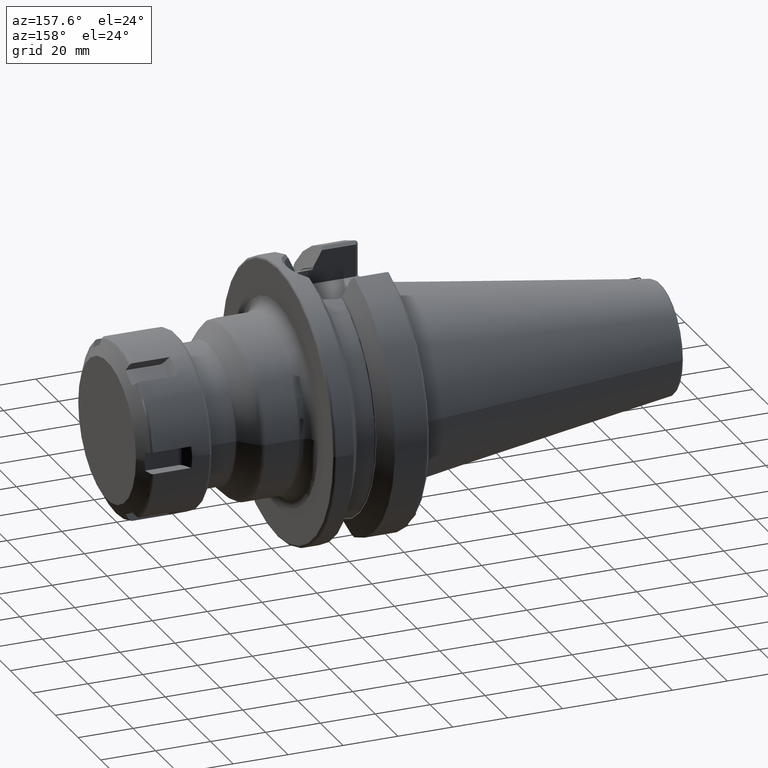
[diagram: clean part render]
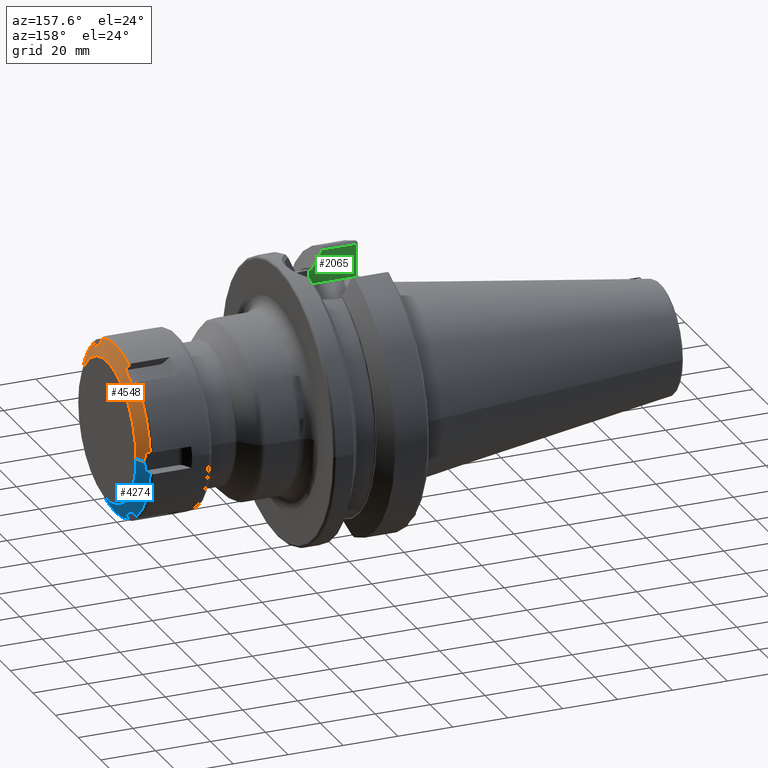
[diagram: same view with three faces highlighted in distinct colors, each labeled with its STEP entity id]
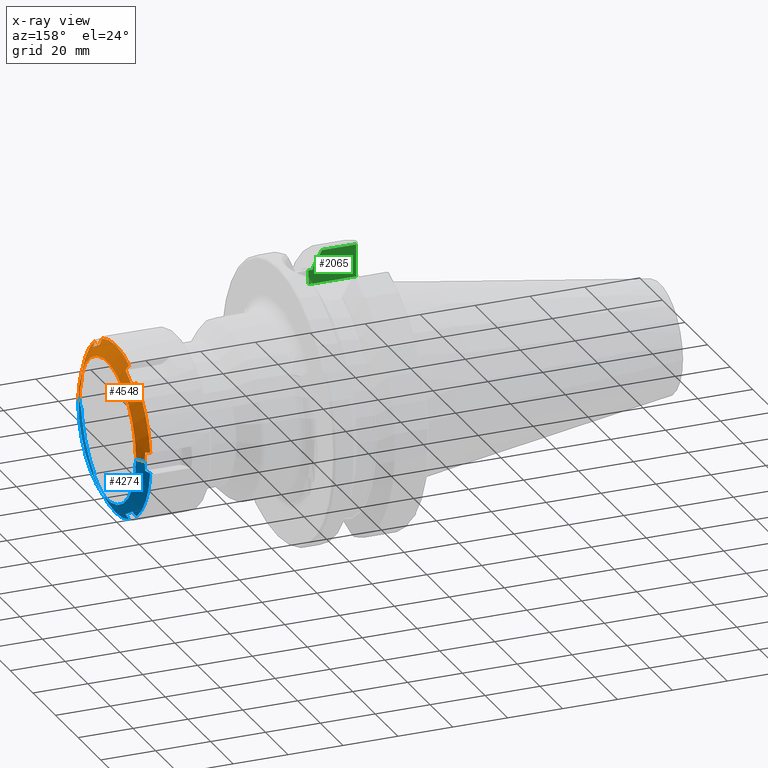
[diagram: x-ray of the same camera — body ghosted, the three highlighted faces saturated]
A machine part, auxiliary view with three faces highlighted in distinct colors.
The next image is the same camera in x-ray (body ghosted, the three faces saturated) — at least one of them is partly hidden behind the body in this view.
Their STEP definitions:

[orange] entity #4548 — the highlighted conical surface has half-angle 60 deg.
#3465=DIRECTION('',(-5.E-1,-8.660254037844E-1,0.E0));
#3466=VECTOR('',#3465,3.752776749692E0);
#3467=CARTESIAN_POINT('',(2.55E1,-2.55E1,0.E0));
#3468=LINE('',#3467,#3466);
#3474=DIRECTION('',(-5.E-1,8.660254037844E-1,0.E0));
#3475=VECTOR('',#3474,3.752776749692E0);
#3476=CARTESIAN_POINT('',(2.55E1,2.55E1,0.E0));
#3477=LINE('',#3476,#3475);
#3750=CARTESIAN_POINT('',(2.351130782476E1,-2.874999999997E1,3.35E0));
#3751=CARTESIAN_POINT('',(2.353617695757E1,-2.874999999997E1,2.977828809184E0));
#3752=CARTESIAN_POINT('',(2.357773662637E1,-2.874999999997E1,2.233458033279E0));
#3753=CARTESIAN_POINT('',(2.361525848375E1,-2.874999999997E1,1.116817767542E0));
#3754=CARTESIAN_POINT('',(2.362361162515E1,-2.874999999997E1,
3.722872262064E-1));
#3755=CARTESIAN_POINT('',(2.362361162515E1,-2.874999999997E1,0.E0));
#3757=CARTESIAN_POINT('',(2.239674230313E1,-3.063769284335E1,3.820654686622E0));
#3758=CARTESIAN_POINT('',(2.258533438069E1,-3.031843804101E1,3.741055524357E0));
#3759=CARTESIAN_POINT('',(2.295968976826E1,-2.968456909419E1,3.583014245782E0));
#3760=CARTESIAN_POINT('',(2.332838053240E1,-2.905997751876E1,3.427286075687E0));
#3761=CARTESIAN_POINT('',(2.351130782476E1,-2.874999999997E1,3.35E0));
#3763=CARTESIAN_POINT('',(2.239674230313E1,0.E0,0.E0));
#3764=DIRECTION('',(-1.E0,0.E0,0.E0));
#3765=DIRECTION('',(0.E0,-9.923139382473E-1,1.237459007814E-1));
#3766=AXIS2_PLACEMENT_3D('',#3763,#3764,#3765);
#3768=CARTESIAN_POINT('',(2.351130782476E1,-1.727618510266E1,2.322323035877E1));
#3769=CARTESIAN_POINT('',(2.332842823305E1,-1.749804769833E1,2.345297580209E1));
#3770=CARTESIAN_POINT('',(2.295978520802E1,-1.794515018410E1,2.391596397947E1));
#3771=CARTESIAN_POINT('',(2.258538211756E1,-1.839901028735E1,2.438594987460E1));
#3772=CARTESIAN_POINT('',(2.239674230313E1,-1.862763043938E1,2.462269297237E1));
#3774=CARTESIAN_POINT('',(2.351130782476E1,-1.147381489730E1,2.657323035877E1));
#3775=CARTESIAN_POINT('',(2.356105051412E1,-1.211849164162E1,2.620102606690E1));
#3776=CARTESIAN_POINT('',(2.362777625606E1,-1.340784245763E1,2.545661902620E1));
#3777=CARTESIAN_POINT('',(2.362777583851E1,-1.534217003691E1,2.433983447760E1));
#3778=CARTESIAN_POINT('',(2.356105010187E1,-1.663151370114E1,2.359543156598E1));
#3779=CARTESIAN_POINT('',(2.351130782476E1,-1.727618510266E1,2.322323035877E1));
#3781=CARTESIAN_POINT('',(2.239674230313E1,-1.201006240397E1,2.844334765900E1));
#3782=CARTESIAN_POINT('',(2.258533438069E1,-1.191936989944E1,2.812706530876E1));
#3783=CARTESIAN_POINT('',(2.295968976826E1,-1.173930318813E1,2.749909805885E1));
#3784=CARTESIAN_POINT('',(2.332838053240E1,-1.156187195180E1,2.688032180249E1));
#3785=CARTESIAN_POINT('',(2.351130782476E1,-1.147381489730E1,2.657323035877E1));
#3787=CARTESIAN_POINT('',(2.239674230313E1,0.E0,0.E0));
#3788=DIRECTION('',(-1.E0,0.E0,0.E0));
#3789=DIRECTION('',(0.E0,-3.889898754327E-1,9.212420294422E-1));
#3790=AXIS2_PLACEMENT_3D('',#3787,#3788,#3789);
#3792=CARTESIAN_POINT('',(2.351130782476E1,1.147381489730E1,2.657323035877E1));
#3793=CARTESIAN_POINT('',(2.332842823305E1,1.156184898978E1,2.688024172443E1));
#3794=CARTESIAN_POINT('',(2.295978520802E1,1.173925727016E1,2.749893792389E1));
#3795=CARTESIAN_POINT('',(2.258538211756E1,1.191934694315E1,2.812698525064E1));
#3796=CARTESIAN_POINT('',(2.239674230313E1,1.201006240397E1,2.844334765900E1));
#3798=CARTESIAN_POINT('',(2.351130782476E1,1.727618510266E1,2.322323035877E1));
#3799=CARTESIAN_POINT('',(2.356105051412E1,1.663150835835E1,2.359543465064E1));
#3800=CARTESIAN_POINT('',(2.362777625606E1,1.534215754233E1,2.433984169135E1));
#3801=CARTESIAN_POINT('',(2.362777583851E1,1.340782996305E1,2.545662623995E1));
#3802=CARTESIAN_POINT('',(2.356105010187E1,1.211848629883E1,2.620102915156E1));
#3803=CARTESIAN_POINT('',(2.351130782476E1,1.147381489730E1,2.657323035877E1));
#3805=CARTESIAN_POINT('',(2.239674230313E1,1.862763043938E1,2.462269297237E1));
#3806=CARTESIAN_POINT('',(2.258533438069E1,1.839906814157E1,2.438600978440E1));
#3807=CARTESIAN_POINT('',(2.295968976826E1,1.794526590606E1,2.391608381307E1));
#3808=CARTESIAN_POINT('',(2.332838053240E1,1.749810556696E1,2.345303572681E1));
#3809=CARTESIAN_POINT('',(2.351130782476E1,1.727618510266E1,2.322323035877E1));
#3811=CARTESIAN_POINT('',(2.239674230313E1,0.E0,0.E0));
#3812=DIRECTION('',(-1.E0,0.E0,0.E0));
#3813=DIRECTION('',(0.E0,6.033240628145E-1,7.974961286608E-1));
#3814=AXIS2_PLACEMENT_3D('',#3811,#3812,#3813);
#3816=CARTESIAN_POINT('',(2.351130782476E1,2.874999999997E1,3.35E0));
#3817=CARTESIAN_POINT('',(2.332842823305E1,2.905989668812E1,3.427265922344E0));
#3818=CARTESIAN_POINT('',(2.295978520802E1,2.968440745426E1,3.582973944421E0));
#3819=CARTESIAN_POINT('',(2.258538211756E1,3.031835723049E1,3.741035376033E0));
#3820=CARTESIAN_POINT('',(2.239674230313E1,3.063769284335E1,3.820654686622E0));
#3822=CARTESIAN_POINT('',(2.362361162515E1,2.874999999997E1,0.E0));
#3823=CARTESIAN_POINT('',(2.362361162515E1,2.874999999997E1,3.723033754199E-1));
#3824=CARTESIAN_POINT('',(2.361525781864E1,2.874999999997E1,1.116855572672E0));
#3825=CARTESIAN_POINT('',(2.357773435590E1,2.874999999997E1,2.233506677949E0));
#3826=CARTESIAN_POINT('',(2.353617556265E1,2.874999999997E1,2.977849684408E0));
#3827=CARTESIAN_POINT('',(2.351130782476E1,2.874999999997E1,3.35E0));
#3829=CARTESIAN_POINT('',(2.55E1,0.E0,0.E0));
#3830=DIRECTION('',(1.E0,0.E0,0.E0));
#3831=DIRECTION('',(0.E0,1.E0,0.E0));
#3832=AXIS2_PLACEMENT_3D('',#3829,#3830,#3831);
#4112=CARTESIAN_POINT('',(2.55E1,2.55E1,0.E0));
#4113=CARTESIAN_POINT('',(2.55E1,-2.55E1,0.E0));
#4114=VERTEX_POINT('',#4112);
#4115=VERTEX_POINT('',#4113);
#4124=VERTEX_POINT('',#3816);
#4125=VERTEX_POINT('',#3820);
#4126=VERTEX_POINT('',#3822);
#4150=VERTEX_POINT('',#3792);
#4151=VERTEX_POINT('',#3796);
#4152=VERTEX_POINT('',#3798);
#4153=VERTEX_POINT('',#3805);
#4165=VERTEX_POINT('',#3768);
#4166=VERTEX_POINT('',#3772);
#4167=VERTEX_POINT('',#3774);
#4168=VERTEX_POINT('',#3781);
#4180=VERTEX_POINT('',#3750);
#4181=VERTEX_POINT('',#3755);
#4182=VERTEX_POINT('',#3757);
#4517=CARTESIAN_POINT('',(2.394837115156E1,0.E0,0.E0));
#4518=DIRECTION('',(-1.E0,0.E0,0.E0));
#4519=DIRECTION('',(0.E0,1.E0,0.E0));
#4520=AXIS2_PLACEMENT_3D('',#4517,#4518,#4519);
#4521=CONICAL_SURFACE('',#4520,2.818749999998E1,6.E1);
#4523=ORIENTED_EDGE('',*,*,#4522,.F.);
#4525=ORIENTED_EDGE('',*,*,#4524,.F.);
#4526=ORIENTED_EDGE('',*,*,#4424,.T.);
#4528=ORIENTED_EDGE('',*,*,#4527,.F.);
#4530=ORIENTED_EDGE('',*,*,#4529,.F.);
#4532=ORIENTED_EDGE('',*,*,#4531,.F.);
#4533=ORIENTED_EDGE('',*,*,#4408,.T.);
#4535=ORIENTED_EDGE('',*,*,#4534,.F.);
#4536=ORIENTED_EDGE('',*,*,#4510,.F.);
#4537=ORIENTED_EDGE('',*,*,#4481,.F.);
#4538=ORIENTED_EDGE('',*,*,#4392,.T.);
#4540=ORIENTED_EDGE('',*,*,#4539,.F.);
#4542=ORIENTED_EDGE('',*,*,#4541,.F.);
#4543=ORIENTED_EDGE('',*,*,#4264,.F.);
#4544=ORIENTED_EDGE('',*,*,#4231,.T.);
#4545=ORIENTED_EDGE('',*,*,#4261,.T.);
#4546=EDGE_LOOP('',(#4523,#4525,#4526,#4528,#4530,#4532,#4533,#4535,#4536,#4537,
#4538,#4540,#4542,#4543,#4544,#4545));
#4547=FACE_OUTER_BOUND('',#4546,.F.);
#4548=ADVANCED_FACE('',(#4547),#4521,.T.);
#3756=B_SPLINE_CURVE_WITH_KNOTS('',3,(#3750,#3751,#3752,#3753,#3754,#3755),
.UNSPECIFIED.,.F.,.F.,(4,1,1,4),(0.E0,3.333333333333E-1,6.666666666667E-1,1.E0),
.UNSPECIFIED.);
#3762=B_SPLINE_CURVE_WITH_KNOTS('',3,(#3757,#3758,#3759,#3760,#3761),
.UNSPECIFIED.,.F.,.F.,(4,1,4),(0.E0,5.E-1,1.E0),.UNSPECIFIED.);
#3767=CIRCLE('',#3766,3.087499999997E1);
#3773=B_SPLINE_CURVE_WITH_KNOTS('',3,(#3768,#3769,#3770,#3771,#3772),
.UNSPECIFIED.,.F.,.F.,(4,1,4),(0.E0,5.E-1,1.E0),.UNSPECIFIED.);
#3780=B_SPLINE_CURVE_WITH_KNOTS('',3,(#3774,#3775,#3776,#3777,#3778,#3779),
.UNSPECIFIED.,.F.,.F.,(4,1,1,4),(0.E0,3.333333333333E-1,6.666666666667E-1,1.E0),
.UNSPECIFIED.);
#3786=B_SPLINE_CURVE_WITH_KNOTS('',3,(#3781,#3782,#3783,#3784,#3785),
.UNSPECIFIED.,.F.,.F.,(4,1,4),(0.E0,5.E-1,1.E0),.UNSPECIFIED.);
#3791=CIRCLE('',#3790,3.087499999997E1);
#3797=B_SPLINE_CURVE_WITH_KNOTS('',3,(#3792,#3793,#3794,#3795,#3796),
.UNSPECIFIED.,.F.,.F.,(4,1,4),(0.E0,5.E-1,1.E0),.UNSPECIFIED.);
#3804=B_SPLINE_CURVE_WITH_KNOTS('',3,(#3798,#3799,#3800,#3801,#3802,#3803),
.UNSPECIFIED.,.F.,.F.,(4,1,1,4),(0.E0,3.333333333333E-1,6.666666666667E-1,1.E0),
.UNSPECIFIED.);
#3810=B_SPLINE_CURVE_WITH_KNOTS('',3,(#3805,#3806,#3807,#3808,#3809),
.UNSPECIFIED.,.F.,.F.,(4,1,4),(0.E0,5.E-1,1.E0),.UNSPECIFIED.);
#3815=CIRCLE('',#3814,3.087499999997E1);
#3821=B_SPLINE_CURVE_WITH_KNOTS('',3,(#3816,#3817,#3818,#3819,#3820),
.UNSPECIFIED.,.F.,.F.,(4,1,4),(0.E0,5.E-1,1.E0),.UNSPECIFIED.);
#3828=B_SPLINE_CURVE_WITH_KNOTS('',3,(#3822,#3823,#3824,#3825,#3826,#3827),
.UNSPECIFIED.,.F.,.F.,(4,1,1,4),(0.E0,3.333333333333E-1,6.666666666667E-1,1.E0),
.UNSPECIFIED.);
#3833=CIRCLE('',#3832,2.55E1);
#4231=EDGE_CURVE('',#4114,#4115,#3833,.T.);
#4261=EDGE_CURVE('',#4115,#4181,#3468,.T.);
#4264=EDGE_CURVE('',#4114,#4126,#3477,.T.);
#4392=EDGE_CURVE('',#4153,#4125,#3815,.T.);
#4408=EDGE_CURVE('',#4168,#4151,#3791,.T.);
#4424=EDGE_CURVE('',#4182,#4166,#3767,.T.);
#4481=EDGE_CURVE('',#4153,#4152,#3810,.T.);
#4510=EDGE_CURVE('',#4152,#4150,#3804,.T.);
#4522=EDGE_CURVE('',#4180,#4181,#3756,.T.);
#4524=EDGE_CURVE('',#4182,#4180,#3762,.T.);
#4527=EDGE_CURVE('',#4165,#4166,#3773,.T.);
#4529=EDGE_CURVE('',#4167,#4165,#3780,.T.);
#4531=EDGE_CURVE('',#4168,#4167,#3786,.T.);
#4534=EDGE_CURVE('',#4150,#4151,#3797,.T.);
#4539=EDGE_CURVE('',#4124,#4125,#3821,.T.);
#4541=EDGE_CURVE('',#4126,#4124,#3828,.T.);

[blue] entity #4274 — the highlighted conical surface has half-angle 60 deg.
#3404=CARTESIAN_POINT('',(2.351130782476E1,1.727618510266E1,-2.322323035877E1));
#3405=CARTESIAN_POINT('',(2.332842823305E1,1.749804769833E1,-2.345297580209E1));
#3406=CARTESIAN_POINT('',(2.295978520802E1,1.794515018410E1,-2.391596397947E1));
#3407=CARTESIAN_POINT('',(2.258538211756E1,1.839901028735E1,-2.438594987460E1));
#3408=CARTESIAN_POINT('',(2.239674230313E1,1.862763043938E1,-2.462269297237E1));
#3410=CARTESIAN_POINT('',(2.351130782476E1,1.147381489730E1,-2.657323035877E1));
#3411=CARTESIAN_POINT('',(2.356105051412E1,1.211849164162E1,-2.620102606690E1));
#3412=CARTESIAN_POINT('',(2.362777625606E1,1.340784245763E1,-2.545661902620E1));
#3413=CARTESIAN_POINT('',(2.362777583851E1,1.534217003691E1,-2.433983447760E1));
#3414=CARTESIAN_POINT('',(2.356105010187E1,1.663151370114E1,-2.359543156598E1));
#3415=CARTESIAN_POINT('',(2.351130782476E1,1.727618510266E1,-2.322323035877E1));
#3417=CARTESIAN_POINT('',(2.239674230313E1,1.201006240397E1,-2.844334765900E1));
#3418=CARTESIAN_POINT('',(2.258533438069E1,1.191936989944E1,-2.812706530876E1));
#3419=CARTESIAN_POINT('',(2.295968976826E1,1.173930318813E1,-2.749909805885E1));
#3420=CARTESIAN_POINT('',(2.332838053240E1,1.156187195180E1,-2.688032180249E1));
#3421=CARTESIAN_POINT('',(2.351130782476E1,1.147381489730E1,-2.657323035877E1));
#3423=CARTESIAN_POINT('',(2.239674230313E1,0.E0,0.E0));
#3424=DIRECTION('',(-1.E0,0.E0,0.E0));
#3425=DIRECTION('',(0.E0,3.889898754327E-1,-9.212420294422E-1));
#3426=AXIS2_PLACEMENT_3D('',#3423,#3424,#3425);
#3428=CARTESIAN_POINT('',(2.351130782476E1,-1.147381489730E1,
-2.657323035877E1));
#3429=CARTESIAN_POINT('',(2.332842823305E1,-1.156184898978E1,
-2.688024172443E1));
#3430=CARTESIAN_POINT('',(2.295978520802E1,-1.173925727016E1,
-2.749893792389E1));
#3431=CARTESIAN_POINT('',(2.258538211756E1,-1.191934694315E1,
-2.812698525064E1));
#3432=CARTESIAN_POINT('',(2.239674230313E1,-1.201006240397E1,
-2.844334765900E1));
#3434=CARTESIAN_POINT('',(2.351130782476E1,-1.727618510266E1,
-2.322323035877E1));
#3435=CARTESIAN_POINT('',(2.356105051412E1,-1.663150835835E1,
-2.359543465064E1));
#3436=CARTESIAN_POINT('',(2.362777625606E1,-1.534215754233E1,
-2.433984169135E1));
#3437=CARTESIAN_POINT('',(2.362777583851E1,-1.340782996305E1,
-2.545662623995E1));
#3438=CARTESIAN_POINT('',(2.356105010187E1,-1.211848629883E1,
-2.620102915156E1));
#3439=CARTESIAN_POINT('',(2.351130782476E1,-1.147381489730E1,
-2.657323035877E1));
#3441=CARTESIAN_POINT('',(2.239674230313E1,-1.862763043938E1,
-2.462269297237E1));
#3442=CARTESIAN_POINT('',(2.258533438069E1,-1.839906814157E1,
-2.438600978440E1));
#3443=CARTESIAN_POINT('',(2.295968976826E1,-1.794526590606E1,
-2.391608381307E1));
#3444=CARTESIAN_POINT('',(2.332838053240E1,-1.749810556696E1,
-2.345303572681E1));
#3445=CARTESIAN_POINT('',(2.351130782476E1,-1.727618510266E1,
-2.322323035877E1));
#3447=CARTESIAN_POINT('',(2.239674230313E1,0.E0,0.E0));
#3448=DIRECTION('',(-1.E0,0.E0,0.E0));
#3449=DIRECTION('',(0.E0,-6.033240628145E-1,-7.974961286608E-1));
#3450=AXIS2_PLACEMENT_3D('',#3447,#3448,#3449);
#3452=CARTESIAN_POINT('',(2.351130782476E1,-2.874999999997E1,-3.35E0));
#3453=CARTESIAN_POINT('',(2.332842823305E1,-2.905989668812E1,
-3.427265922344E0));
#3454=CARTESIAN_POINT('',(2.295978520802E1,-2.968440745426E1,
-3.582973944421E0));
#3455=CARTESIAN_POINT('',(2.258538211756E1,-3.031835723049E1,
-3.741035376033E0));
#3456=CARTESIAN_POINT('',(2.239674230313E1,-3.063769284335E1,
-3.820654686622E0));
#3458=CARTESIAN_POINT('',(2.362361162515E1,-2.874999999997E1,0.E0));
#3459=CARTESIAN_POINT('',(2.362361162515E1,-2.874999999997E1,
-3.723033754199E-1));
#3460=CARTESIAN_POINT('',(2.361525781864E1,-2.874999999997E1,
-1.116855572672E0));
#3461=CARTESIAN_POINT('',(2.357773435590E1,-2.874999999997E1,
-2.233506677949E0));
#3462=CARTESIAN_POINT('',(2.353617556265E1,-2.874999999997E1,
-2.977849684408E0));
#3463=CARTESIAN_POINT('',(2.351130782476E1,-2.874999999997E1,-3.35E0));
#3465=DIRECTION('',(-5.E-1,-8.660254037844E-1,0.E0));
#3466=VECTOR('',#3465,3.752776749692E0);
#3467=CARTESIAN_POINT('',(2.55E1,-2.55E1,0.E0));
#3468=LINE('',#3467,#3466);
#3469=CARTESIAN_POINT('',(2.55E1,0.E0,0.E0));
#3470=DIRECTION('',(-1.E0,0.E0,0.E0));
#3471=DIRECTION('',(0.E0,1.E0,0.E0));
#3472=AXIS2_PLACEMENT_3D('',#3469,#3470,#3471);
#3474=DIRECTION('',(-5.E-1,8.660254037844E-1,0.E0));
#3475=VECTOR('',#3474,3.752776749692E0);
#3476=CARTESIAN_POINT('',(2.55E1,2.55E1,0.E0));
#3477=LINE('',#3476,#3475);
#3478=CARTESIAN_POINT('',(2.351130782476E1,2.874999999997E1,-3.35E0));
#3479=CARTESIAN_POINT('',(2.353617695757E1,2.874999999997E1,-2.977828809184E0));
#3480=CARTESIAN_POINT('',(2.357773662637E1,2.874999999997E1,-2.233458033279E0));
#3481=CARTESIAN_POINT('',(2.361525848375E1,2.874999999997E1,-1.116817767542E0));
#3482=CARTESIAN_POINT('',(2.362361162515E1,2.874999999997E1,
-3.722872262064E-1));
#3483=CARTESIAN_POINT('',(2.362361162515E1,2.874999999997E1,0.E0));
#3485=CARTESIAN_POINT('',(2.239674230313E1,3.063769284335E1,-3.820654686622E0));
#3486=CARTESIAN_POINT('',(2.258533438069E1,3.031843804101E1,-3.741055524357E0));
#3487=CARTESIAN_POINT('',(2.295968976826E1,2.968456909419E1,-3.583014245782E0));
#3488=CARTESIAN_POINT('',(2.332838053240E1,2.905997751876E1,-3.427286075687E0));
#3489=CARTESIAN_POINT('',(2.351130782476E1,2.874999999997E1,-3.35E0));
#3491=CARTESIAN_POINT('',(2.239674230313E1,0.E0,0.E0));
#3492=DIRECTION('',(-1.E0,0.E0,0.E0));
#3493=DIRECTION('',(0.E0,9.923139382473E-1,-1.237459007814E-1));
#3494=AXIS2_PLACEMENT_3D('',#3491,#3492,#3493);
#3755=CARTESIAN_POINT('',(2.362361162515E1,-2.874999999997E1,0.E0));
#3822=CARTESIAN_POINT('',(2.362361162515E1,2.874999999997E1,0.E0));
#4112=CARTESIAN_POINT('',(2.55E1,2.55E1,0.E0));
#4113=CARTESIAN_POINT('',(2.55E1,-2.55E1,0.E0));
#4114=VERTEX_POINT('',#4112);
#4115=VERTEX_POINT('',#4113);
#4126=VERTEX_POINT('',#3822);
#4127=VERTEX_POINT('',#3478);
#4128=VERTEX_POINT('',#3485);
#4181=VERTEX_POINT('',#3755);
#4183=VERTEX_POINT('',#3452);
#4184=VERTEX_POINT('',#3456);
#4194=VERTEX_POINT('',#3428);
#4195=VERTEX_POINT('',#3432);
#4196=VERTEX_POINT('',#3434);
#4197=VERTEX_POINT('',#3441);
#4209=VERTEX_POINT('',#3404);
#4210=VERTEX_POINT('',#3408);
#4211=VERTEX_POINT('',#3410);
#4212=VERTEX_POINT('',#3417);
#4236=CARTESIAN_POINT('',(2.394837115156E1,0.E0,0.E0));
#4237=DIRECTION('',(-1.E0,0.E0,0.E0));
#4238=DIRECTION('',(0.E0,1.E0,0.E0));
#4239=AXIS2_PLACEMENT_3D('',#4236,#4237,#4238);
#4240=CONICAL_SURFACE('',#4239,2.818749999998E1,6.E1);
#4242=ORIENTED_EDGE('',*,*,#4241,.F.);
#4244=ORIENTED_EDGE('',*,*,#4243,.F.);
#4246=ORIENTED_EDGE('',*,*,#4245,.F.);
#4248=ORIENTED_EDGE('',*,*,#4247,.T.);
#4250=ORIENTED_EDGE('',*,*,#4249,.F.);
#4252=ORIENTED_EDGE('',*,*,#4251,.F.);
#4254=ORIENTED_EDGE('',*,*,#4253,.F.);
#4256=ORIENTED_EDGE('',*,*,#4255,.T.);
#4258=ORIENTED_EDGE('',*,*,#4257,.F.);
#4260=ORIENTED_EDGE('',*,*,#4259,.F.);
#4262=ORIENTED_EDGE('',*,*,#4261,.F.);
#4263=ORIENTED_EDGE('',*,*,#4229,.F.);
#4265=ORIENTED_EDGE('',*,*,#4264,.T.);
#4267=ORIENTED_EDGE('',*,*,#4266,.F.);
#4269=ORIENTED_EDGE('',*,*,#4268,.F.);
#4271=ORIENTED_EDGE('',*,*,#4270,.T.);
#4272=EDGE_LOOP('',(#4242,#4244,#4246,#4248,#4250,#4252,#4254,#4256,#4258,#4260,
#4262,#4263,#4265,#4267,#4269,#4271));
#4273=FACE_OUTER_BOUND('',#4272,.F.);
#4274=ADVANCED_FACE('',(#4273),#4240,.T.);
#3409=B_SPLINE_CURVE_WITH_KNOTS('',3,(#3404,#3405,#3406,#3407,#3408),
.UNSPECIFIED.,.F.,.F.,(4,1,4),(0.E0,5.E-1,1.E0),.UNSPECIFIED.);
#3416=B_SPLINE_CURVE_WITH_KNOTS('',3,(#3410,#3411,#3412,#3413,#3414,#3415),
.UNSPECIFIED.,.F.,.F.,(4,1,1,4),(0.E0,3.333333333333E-1,6.666666666667E-1,1.E0),
.UNSPECIFIED.);
#3422=B_SPLINE_CURVE_WITH_KNOTS('',3,(#3417,#3418,#3419,#3420,#3421),
.UNSPECIFIED.,.F.,.F.,(4,1,4),(0.E0,5.E-1,1.E0),.UNSPECIFIED.);
#3427=CIRCLE('',#3426,3.087499999997E1);
#3433=B_SPLINE_CURVE_WITH_KNOTS('',3,(#3428,#3429,#3430,#3431,#3432),
.UNSPECIFIED.,.F.,.F.,(4,1,4),(0.E0,5.E-1,1.E0),.UNSPECIFIED.);
#3440=B_SPLINE_CURVE_WITH_KNOTS('',3,(#3434,#3435,#3436,#3437,#3438,#3439),
.UNSPECIFIED.,.F.,.F.,(4,1,1,4),(0.E0,3.333333333333E-1,6.666666666667E-1,1.E0),
.UNSPECIFIED.);
#3446=B_SPLINE_CURVE_WITH_KNOTS('',3,(#3441,#3442,#3443,#3444,#3445),
.UNSPECIFIED.,.F.,.F.,(4,1,4),(0.E0,5.E-1,1.E0),.UNSPECIFIED.);
#3451=CIRCLE('',#3450,3.087499999997E1);
#3457=B_SPLINE_CURVE_WITH_KNOTS('',3,(#3452,#3453,#3454,#3455,#3456),
.UNSPECIFIED.,.F.,.F.,(4,1,4),(0.E0,5.E-1,1.E0),.UNSPECIFIED.);
#3464=B_SPLINE_CURVE_WITH_KNOTS('',3,(#3458,#3459,#3460,#3461,#3462,#3463),
.UNSPECIFIED.,.F.,.F.,(4,1,1,4),(0.E0,3.333333333333E-1,6.666666666667E-1,1.E0),
.UNSPECIFIED.);
#3473=CIRCLE('',#3472,2.55E1);
#3484=B_SPLINE_CURVE_WITH_KNOTS('',3,(#3478,#3479,#3480,#3481,#3482,#3483),
.UNSPECIFIED.,.F.,.F.,(4,1,1,4),(0.E0,3.333333333333E-1,6.666666666667E-1,1.E0),
.UNSPECIFIED.);
#3490=B_SPLINE_CURVE_WITH_KNOTS('',3,(#3485,#3486,#3487,#3488,#3489),
.UNSPECIFIED.,.F.,.F.,(4,1,4),(0.E0,5.E-1,1.E0),.UNSPECIFIED.);
#3495=CIRCLE('',#3494,3.087499999997E1);
#4229=EDGE_CURVE('',#4114,#4115,#3473,.T.);
#4241=EDGE_CURVE('',#4209,#4210,#3409,.T.);
#4243=EDGE_CURVE('',#4211,#4209,#3416,.T.);
#4245=EDGE_CURVE('',#4212,#4211,#3422,.T.);
#4247=EDGE_CURVE('',#4212,#4195,#3427,.T.);
#4249=EDGE_CURVE('',#4194,#4195,#3433,.T.);
#4251=EDGE_CURVE('',#4196,#4194,#3440,.T.);
#4253=EDGE_CURVE('',#4197,#4196,#3446,.T.);
#4255=EDGE_CURVE('',#4197,#4184,#3451,.T.);
#4257=EDGE_CURVE('',#4183,#4184,#3457,.T.);
#4259=EDGE_CURVE('',#4181,#4183,#3464,.T.);
#4261=EDGE_CURVE('',#4115,#4181,#3468,.T.);
#4264=EDGE_CURVE('',#4114,#4126,#3477,.T.);
#4266=EDGE_CURVE('',#4127,#4126,#3484,.T.);
#4268=EDGE_CURVE('',#4128,#4127,#3490,.T.);
#4270=EDGE_CURVE('',#4128,#4210,#3495,.T.);

[green] entity #2065 — the highlighted planar face has unit normal (0, -1, 0).
#468=DIRECTION('',(0.E0,0.E0,1.E0));
#469=VECTOR('',#468,5.162930007E0);
#470=CARTESIAN_POINT('',(2.13475E1,-1.29025E1,3.52E1));
#471=LINE('',#470,#469);
#529=DIRECTION('',(0.E0,0.E0,1.E0));
#530=VECTOR('',#529,4.678451531613E-1);
#531=CARTESIAN_POINT('',(1.96625E1,-1.29025E1,4.062531376802E1));
#532=LINE('',#531,#530);
#533=CARTESIAN_POINT('',(1.640508297825E1,-1.29025E1,4.697335042340E1));
#534=CARTESIAN_POINT('',(1.678800997375E1,-1.29025E1,4.628553610571E1));
#535=CARTESIAN_POINT('',(1.753988026520E1,-1.29025E1,4.493290409157E1));
#536=CARTESIAN_POINT('',(1.862508060803E1,-1.29025E1,4.297399674455E1));
#537=CARTESIAN_POINT('',(1.932130614689E1,-1.29025E1,4.171256941858E1));
#538=CARTESIAN_POINT('',(1.96625E1,-1.29025E1,4.109315892118E1));
#540=DIRECTION('',(-1.E0,0.E0,0.E0));
#541=VECTOR('',#540,1.240508297825E1);
#542=CARTESIAN_POINT('',(1.640508297825E1,-1.29025E1,4.697335042340E1));
#543=LINE('',#542,#541);
#544=DIRECTION('',(0.E0,0.E0,-1.E0));
#545=VECTOR('',#544,1.177335042340E1);
#546=CARTESIAN_POINT('',(4.E0,-1.29025E1,4.697335042340E1));
#547=LINE('',#546,#545);
#548=DIRECTION('',(1.E0,0.E0,0.E0));
#549=VECTOR('',#548,1.435E0);
#550=CARTESIAN_POINT('',(1.99125E1,-1.29025E1,4.036293000700E1));
#551=LINE('',#550,#549);
#552=CARTESIAN_POINT('',(1.96625E1,-1.29025E1,4.062531376802E1));
#553=CARTESIAN_POINT('',(1.96625E1,-1.29025E1,4.059802443585E1));
#554=CARTESIAN_POINT('',(1.967010312706E1,-1.29025E1,4.054571527488E1));
#555=CARTESIAN_POINT('',(1.970597803203E1,-1.29025E1,4.046933362101E1));
#556=CARTESIAN_POINT('',(1.976358989115E1,-1.29025E1,4.040921074747E1));
#557=CARTESIAN_POINT('',(1.983275140013E1,-1.29025E1,4.037231907874E1));
#558=CARTESIAN_POINT('',(1.988482223968E1,-1.29025E1,4.036293000700E1));
#559=CARTESIAN_POINT('',(1.99125E1,-1.29025E1,4.036293000700E1));
#675=DIRECTION('',(1.E0,0.E0,0.E0));
#676=VECTOR('',#675,1.73475E1);
#677=CARTESIAN_POINT('',(4.E0,-1.29025E1,3.52E1));
#678=LINE('',#677,#676);
#1233=CARTESIAN_POINT('',(1.96625E1,-1.29025E1,4.062531376802E1));
#1235=VERTEX_POINT('',#1233);
#1241=CARTESIAN_POINT('',(1.99125E1,-1.29025E1,4.036293000700E1));
#1243=VERTEX_POINT('',#1241);
#1276=CARTESIAN_POINT('',(1.96625E1,-1.29025E1,4.109315892118E1));
#1278=VERTEX_POINT('',#1276);
#1362=CARTESIAN_POINT('',(2.13475E1,-1.29025E1,3.52E1));
#1364=VERTEX_POINT('',#1362);
#1381=CARTESIAN_POINT('',(2.13475E1,-1.29025E1,4.036293000700E1));
#1382=VERTEX_POINT('',#1381);
#1383=VERTEX_POINT('',#533);
#1402=CARTESIAN_POINT('',(4.E0,-1.29025E1,4.697335042340E1));
#1403=CARTESIAN_POINT('',(4.E0,-1.29025E1,3.52E1));
#1404=VERTEX_POINT('',#1402);
#1405=VERTEX_POINT('',#1403);
#2047=CARTESIAN_POINT('',(2.8E0,-1.29025E1,3.52E1));
#2048=DIRECTION('',(0.E0,-1.E0,0.E0));
#2049=DIRECTION('',(1.E0,0.E0,0.E0));
#2050=AXIS2_PLACEMENT_3D('',#2047,#2048,#2049);
#2051=PLANE('',#2050);
#2052=ORIENTED_EDGE('',*,*,#1740,.T.);
#2053=ORIENTED_EDGE('',*,*,#1781,.F.);
#2055=ORIENTED_EDGE('',*,*,#2054,.T.);
#2057=ORIENTED_EDGE('',*,*,#2056,.T.);
#2059=ORIENTED_EDGE('',*,*,#2058,.T.);
#2060=ORIENTED_EDGE('',*,*,#2027,.T.);
#2061=ORIENTED_EDGE('',*,*,#1928,.F.);
#2062=ORIENTED_EDGE('',*,*,#1896,.F.);
#2063=EDGE_LOOP('',(#2052,#2053,#2055,#2057,#2059,#2060,#2061,#2062));
#2064=FACE_OUTER_BOUND('',#2063,.F.);
#2065=ADVANCED_FACE('',(#2064),#2051,.F.);
#539=B_SPLINE_CURVE_WITH_KNOTS('',3,(#533,#534,#535,#536,#537,#538),
.UNSPECIFIED.,.F.,.F.,(4,1,1,4),(0.E0,3.333333333333E-1,6.666666666667E-1,1.E0),
.UNSPECIFIED.);
#560=B_SPLINE_CURVE_WITH_KNOTS('',3,(#552,#553,#554,#555,#556,#557,#558,#559),
.UNSPECIFIED.,.F.,.F.,(4,1,1,1,1,4),(0.E0,2.E-1,4.E-1,6.E-1,8.E-1,1.E0),
.UNSPECIFIED.);
#1740=EDGE_CURVE('',#1235,#1278,#532,.T.);
#1781=EDGE_CURVE('',#1383,#1278,#539,.T.);
#1896=EDGE_CURVE('',#1235,#1243,#560,.T.);
#1928=EDGE_CURVE('',#1243,#1382,#551,.T.);
#2027=EDGE_CURVE('',#1364,#1382,#471,.T.);
#2054=EDGE_CURVE('',#1383,#1404,#543,.T.);
#2056=EDGE_CURVE('',#1404,#1405,#547,.T.);
#2058=EDGE_CURVE('',#1405,#1364,#678,.T.);